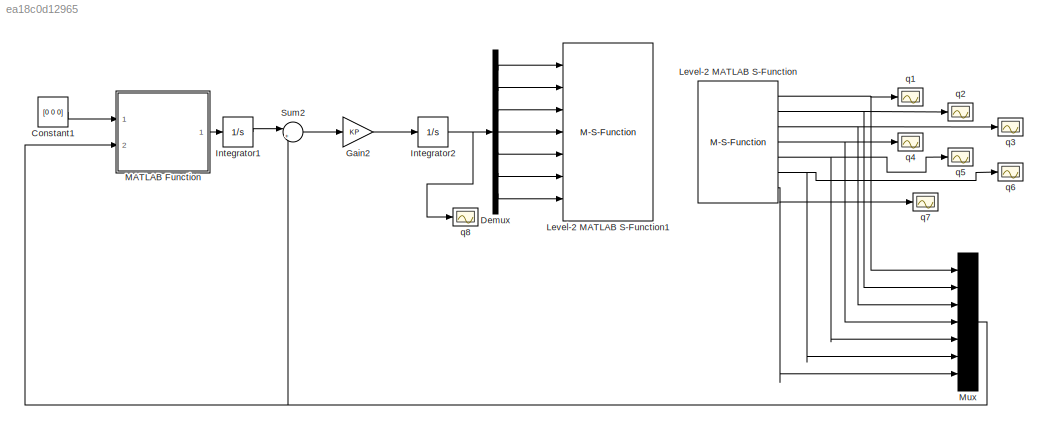
MODEL slx_ea18c0d12965
KIND model
CONFIG InitFcn = clear all\nclc\n\nglobal clientID\nglobal vrep\nglobal vecJoints nJoints\n\nRob_KUKA_LWR4plus_Jacobian\n\nload_path\nKP= diag([1,1,1,1,1,1,1])\nKI= diag([1,1,1,1,1,1,1])\n\naddpath('C:\Program Files (x86)\V-REP3\V-REP_PRO_EDU\programming\remoteApiBindings\lib\lib\64Bit')\n\n\ndisp('Program started');\nvrep=remApi('remoteApi'); % using the prototype file (remoteApiProto.m)\nvrep.simxFinish(-1); % just in case, close...<+998ch>
CONFIG StopFcn = global clientID\n\nvrep.simxStopSimulation(clientID,vrep.simx_opmode_oneshot_wait);\n
BLOCK [Constant] Constant1
  Value = [0 0 0]
BLOCK [Demux] Demux
  DisplayOption = bar
  Outputs = 7
  Ports = [1, 7]
BLOCK [Gain] Gain2
  Gain = KP
  Multiplication = Matrix(K*u)
  OutDataTypeStr = Inherit: Inherit via internal rule
  ParamDataTypeStr = Inherit: Inherit via internal rule
  SaturateOnIntegerOverflow = off
BLOCK [Integrator] Integrator1
  Ports = [1, 1]
BLOCK [Integrator] Integrator2
  Ports = [1, 1]
BLOCK [M-S-Function] Level-2 MATLAB S-Function
  FunctionName = Vrep_source
  Ports = [0, 7]
BLOCK [M-S-Function] Level-2 MATLAB S-Function1
  FunctionName = Vrep_sink
  Ports = [7]
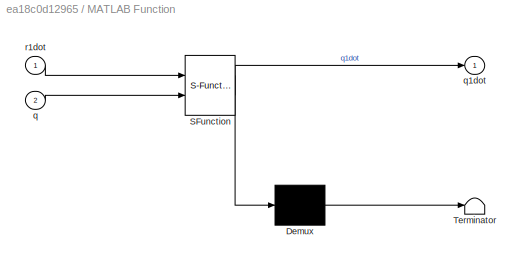
BLOCK [SubSystem] MATLAB Function
  ErrorFcn = Stateflow.Translate.translate
  PermitHierarchicalResolution = ExplicitOnly
  Ports = [2, 1]
  RequestExecContextInheritance = off
  SFBlockType = MATLAB Function
  TreatAsAtomicUnit = on
BLOCK [Demux] MATLAB Function/ Demux 
  Outputs = 1
  Ports = [1, 1]
BLOCK [S-Function] MATLAB Function/ SFunction 
  EnableBusSupport = on
  FunctionName = sf_sfun
  PortCounts = [2 2]
  Ports = [2, 2]
  Tag = Stateflow S-Function LWR4 2
BLOCK [Terminator] MATLAB Function/ Terminator 
BLOCK [Inport] MATLAB Function/q
  IconDisplay = Port number
  Port = 2
BLOCK [Outport] MATLAB Function/q1dot
  IconDisplay = Port number
BLOCK [Inport] MATLAB Function/r1dot
  IconDisplay = Port number
BLOCK [Mux] Mux
  DisplayOption = bar
  Inputs = 7
  Ports = [7, 1]
BLOCK [Sum] Sum2
  IconShape = round
  InputSameDT = off
  Inputs = |+-
  OutDataTypeStr = Inherit: Inherit via internal rule
  Ports = [2, 1]
  SaturateOnIntegerOverflow = off
BLOCK [Scope] q1
  DataFormat = StructureWithTime
  Floating = off
  NumInputPorts = 1
  Ports = [1]
  SampleTime = 0
  ShowLegends = off
  YMax = 2.9695
  YMin = 2.965
  ZoomMode = xonly
BLOCK [Scope] q2
  DataFormat = StructureWithTime
  Floating = off
  NumInputPorts = 1
  Ports = [1]
  SampleTime = 0
  SaveName = ScopeData1
  ShowLegends = off
BLOCK [Scope] q3
  DataFormat = StructureWithTime
  Floating = off
  NumInputPorts = 1
  Ports = [1]
  SampleTime = 0
  SaveName = ScopeData2
  ShowLegends = off
BLOCK [Scope] q4
  DataFormat = StructureWithTime
  Floating = off
  NumInputPorts = 1
  Ports = [1]
  SampleTime = 0
  SaveName = ScopeData3
  ShowLegends = off
BLOCK [Scope] q5
  DataFormat = StructureWithTime
  Floating = off
  NumInputPorts = 1
  Ports = [1]
  SampleTime = 0
  SaveName = ScopeData4
  ShowLegends = off
BLOCK [Scope] q6
  DataFormat = StructureWithTime
  Floating = off
  NumInputPorts = 1
  Ports = [1]
  SampleTime = 0
  SaveName = ScopeData5
  ShowLegends = off
BLOCK [Scope] q7
  DataFormat = StructureWithTime
  Floating = off
  NumInputPorts = 1
  Ports = [1]
  SampleTime = 0
  SaveName = ScopeData6
  ShowLegends = off
BLOCK [Scope] q8
  DataFormat = StructureWithTime
  Floating = off
  NumInputPorts = 1
  Ports = [1]
  SampleTime = 0
  SaveName = ScopeData7
  ShowLegends = off
  TimeRange = 12
  YMax = -2.967
  YMin = -2.9745
  ZoomMode = xonly
LINE Constant1:1 -> MATLAB Function:1
LINE Demux:1 -> Level-2 MATLAB S-Function1:1
LINE Demux:2 -> Level-2 MATLAB S-Function1:2
LINE Demux:3 -> Level-2 MATLAB S-Function1:3
LINE Demux:4 -> Level-2 MATLAB S-Function1:4
LINE Demux:5 -> Level-2 MATLAB S-Function1:5
LINE Demux:6 -> Level-2 MATLAB S-Function1:6
LINE Demux:7 -> Level-2 MATLAB S-Function1:7
LINE Gain2:1 -> Integrator2:1
LINE Integrator1:1 -> Sum2:1
NET Integrator2:1 -> Demux:1, q8:1
NET Level-2 MATLAB S-Function:1 -> Mux:1, q1:1
NET Level-2 MATLAB S-Function:2 -> Mux:2, q2:1
NET Level-2 MATLAB S-Function:3 -> Mux:3, q3:1
NET Level-2 MATLAB S-Function:4 -> Mux:4, q4:1
NET Level-2 MATLAB S-Function:5 -> Mux:5, q5:1
NET Level-2 MATLAB S-Function:6 -> Mux:6, q6:1
NET Level-2 MATLAB S-Function:7 -> Mux:7, q7:1
LINE MATLAB Function:1 -> Integrator1:1
NET Mux:1 -> MATLAB Function:2, Sum2:2
LINE Sum2:1 -> Gain2:1
note: NET lines group one-source signal fan-out (src -> all destinations, sorted); 1:1 wires keep LINE
